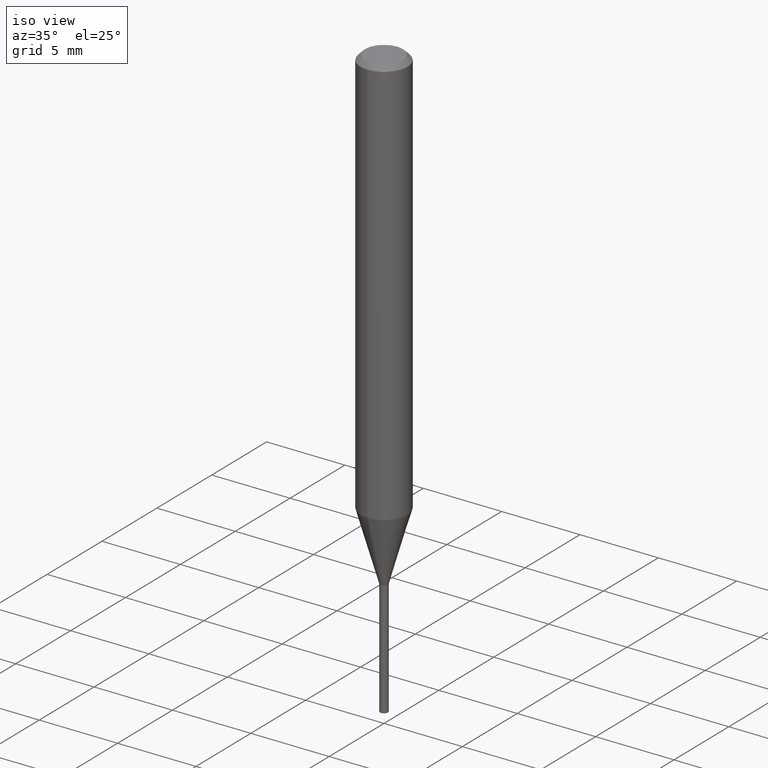
[diagram: clean part render]
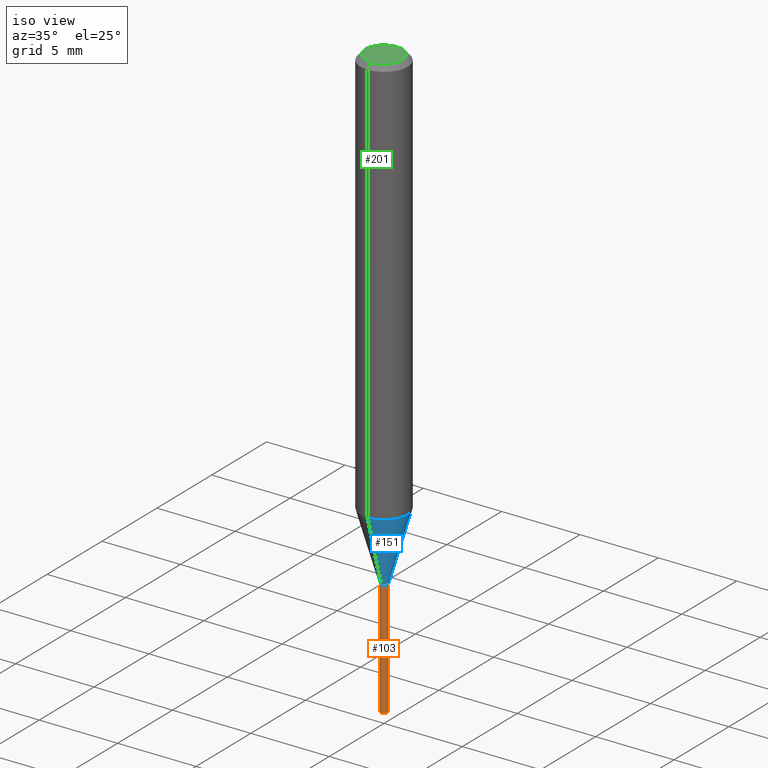
[diagram: same view with three faces highlighted in distinct colors, each labeled with its STEP entity id]
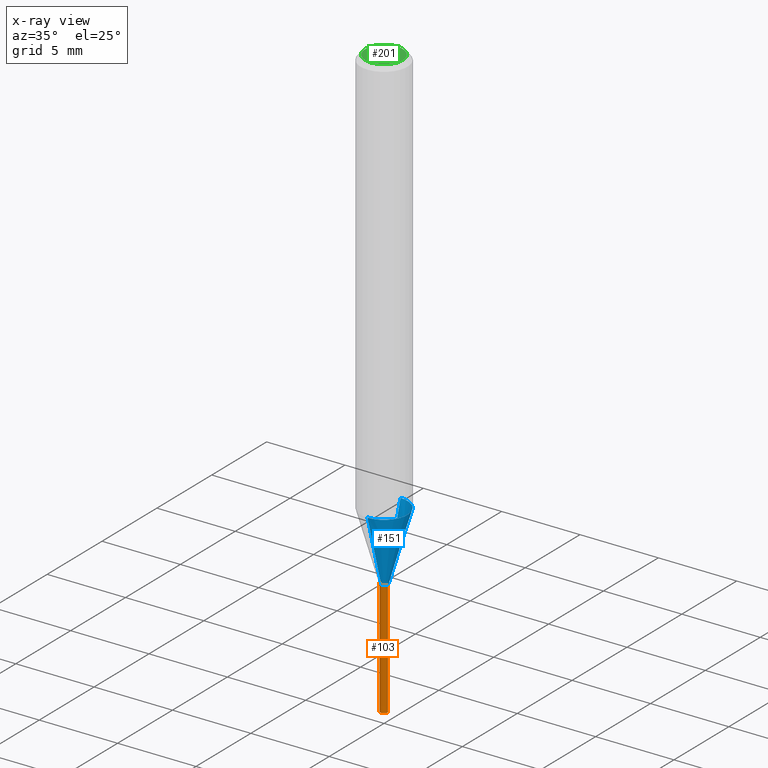
[diagram: x-ray of the same camera — body ghosted, the three highlighted faces saturated]
A machine part, iso view with three faces highlighted in distinct colors.
The next image is the same camera in x-ray (body ghosted, the three faces saturated) — at least one of them is partly hidden behind the body in this view.
Their STEP definitions:

[orange] entity #103 — the highlighted conical surface has half-angle 0.008 deg.
#103=ADVANCED_FACE('',(#242),#243,.T.);
#117=VERTEX_POINT('',#258);
#141=VERTEX_POINT('',#286);
#145=EDGE_CURVE('',#141,#153,#290,.T.);
#147=EDGE_CURVE('',#187,#117,#292,.T.);
#149=EDGE_CURVE('',#187,#153,#294,.T.);
#153=VERTEX_POINT('',#299);
#171=EDGE_CURVE('',#117,#141,#317,.T.);
#187=VERTEX_POINT('',#334);
#242=FACE_OUTER_BOUND('',#386,.T.);
#243=CONICAL_SURFACE('',#387,0.2505,0.00013543853327867);
#258=CARTESIAN_POINT('',(0.251,3.07376194809417E-017,-30.5));
#286=CARTESIAN_POINT('',(-0.251,0.0,-30.5));
#290=LINE('',#448,#449);
#292=LINE('',#452,#453);
#294=CIRCLE('',#456,0.25);
#299=CARTESIAN_POINT('',(-0.25,0.0,-37.88342309));
#317=CIRCLE('',#486,0.251);
#334=CARTESIAN_POINT('',(0.25,3.06151588455594E-017,-37.88342309));
#386=EDGE_LOOP('',(#569,#570,#571,#572));
#387=AXIS2_PLACEMENT_3D('',#573,#574,#575);
#448=CARTESIAN_POINT('',(-0.2505,-3.06763891632506E-017,-34.191711545));
#449=VECTOR('',#635,1.0);
#452=CARTESIAN_POINT('',(0.2505,3.06763891632506E-017,-34.191711545));
#453=VECTOR('',#636,1.0);
#456=AXIS2_PLACEMENT_3D('',#637,#638,#639);
#486=AXIS2_PLACEMENT_3D('',#660,#661,#662);
#569=ORIENTED_EDGE('',*,*,#145,.T.);
#570=ORIENTED_EDGE('',*,*,#149,.F.);
#571=ORIENTED_EDGE('',*,*,#147,.T.);
#572=ORIENTED_EDGE('',*,*,#171,.T.);
#573=CARTESIAN_POINT('',(0.0,0.0,-34.191711545));
#574=DIRECTION('',(-0.0,-0.0,1.0));
#575=DIRECTION('',(-1.0,0.0,0.0));
#635=DIRECTION('',(0.000135438532864599,1.65858887898369E-020,-0.999999990828202));
#636=DIRECTION('',(0.000135438532864599,1.65858887898369E-020,0.999999990828202));
#637=CARTESIAN_POINT('',(0.0,0.0,-37.88342309));
#638=DIRECTION('',(0.0,0.0,-1.0));
#639=DIRECTION('',(-1.0,0.0,0.0));
#660=CARTESIAN_POINT('',(0.0,0.0,-30.5));
#661=DIRECTION('',(0.0,0.0,-1.0));
#662=DIRECTION('',(-1.0,0.0,0.0));

[blue] entity #151 — the highlighted conical surface has half-angle 16.004 deg.
#101=VERTEX_POINT('',#240);
#111=EDGE_CURVE('',#101,#179,#252,.T.);
#115=EDGE_CURVE('',#127,#179,#256,.T.);
#125=EDGE_CURVE('',#127,#135,#268,.T.);
#127=VERTEX_POINT('',#270);
#135=VERTEX_POINT('',#278);
#151=ADVANCED_FACE('',(#296),#297,.T.);
#155=EDGE_CURVE('',#135,#101,#301,.T.);
#179=VERTEX_POINT('',#326);
#240=CARTESIAN_POINT('',(3.06151588455594E-017,-0.25,-30.4991339745962));
#252=LINE('',#399,#400);
#256=CIRCLE('',#407,1.5);
#268=LINE('',#419,#420);
#270=CARTESIAN_POINT('',(0.0,1.5,-26.141));
#278=CARTESIAN_POINT('',(0.0,0.25,-30.4991339745962));
#296=FACE_OUTER_BOUND('',#458,.T.);
#297=CONICAL_SURFACE('',#459,0.875,0.2793216271515);
#301=CIRCLE('',#464,0.25);
#326=CARTESIAN_POINT('',(1.83690953073357E-016,-1.5,-26.141));
#399=CARTESIAN_POINT('',(1.07153055959458E-016,-0.875,-28.3200669872981));
#400=VECTOR('',#590,1.0);
#407=AXIS2_PLACEMENT_3D('',#592,#593,#594);
#419=CARTESIAN_POINT('',(-1.07153055959458E-016,0.875,-28.3200669872981));
#420=VECTOR('',#609,1.0);
#458=EDGE_LOOP('',(#641,#642,#643,#644));
#459=AXIS2_PLACEMENT_3D('',#645,#646,#647);
#464=AXIS2_PLACEMENT_3D('',#648,#649,#650);
#590=DIRECTION('',(3.37628418430251E-017,-0.275703631110853,0.961242689330999));
#592=CARTESIAN_POINT('',(0.0,0.0,-26.141));
#593=DIRECTION('',(0.0,0.0,-1.0));
#594=DIRECTION('',(0.0,1.0,0.0));
#609=DIRECTION('',(3.37628418430251E-017,-0.275703631110853,-0.961242689330999));
#641=ORIENTED_EDGE('',*,*,#125,.F.);
#642=ORIENTED_EDGE('',*,*,#115,.T.);
#643=ORIENTED_EDGE('',*,*,#111,.F.);
#644=ORIENTED_EDGE('',*,*,#155,.F.);
#645=CARTESIAN_POINT('',(0.0,0.0,-28.3200669872981));
#646=DIRECTION('',(-0.0,-0.0,1.0));
#647=DIRECTION('',(0.0,1.0,0.0));
#648=CARTESIAN_POINT('',(0.0,0.0,-30.4991339745962));
#649=DIRECTION('',(0.0,0.0,-1.0));
#650=DIRECTION('',(0.0,1.0,0.0));

[green] entity #201 — the highlighted planar face has unit normal (-0, 0, 1).
#133=EDGE_CURVE('',#193,#195,#276,.T.);
#181=EDGE_CURVE('',#195,#193,#328,.T.);
#193=VERTEX_POINT('',#341);
#195=VERTEX_POINT('',#343);
#201=ADVANCED_FACE('',(#350),#351,.T.);
#276=CIRCLE('',#432,1.2);
#328=CIRCLE('',#500,1.2);
#341=CARTESIAN_POINT('',(0.0,1.2,0.0));
#343=CARTESIAN_POINT('',(1.46952762458685E-016,-1.2,0.0));
#350=FACE_OUTER_BOUND('',#525,.T.);
#351=PLANE('',#526);
#432=AXIS2_PLACEMENT_3D('',#614,#615,#616);
#500=AXIS2_PLACEMENT_3D('',#672,#673,#674);
#525=EDGE_LOOP('',(#694,#695));
#526=AXIS2_PLACEMENT_3D('',#696,#697,#698);
#614=CARTESIAN_POINT('',(0.0,0.0,0.0));
#615=DIRECTION('',(0.0,0.0,-1.0));
#616=DIRECTION('',(0.0,1.0,0.0));
#672=CARTESIAN_POINT('',(0.0,0.0,0.0));
#673=DIRECTION('',(0.0,0.0,-1.0));
#674=DIRECTION('',(0.0,1.0,0.0));
#694=ORIENTED_EDGE('',*,*,#133,.F.);
#695=ORIENTED_EDGE('',*,*,#181,.F.);
#696=CARTESIAN_POINT('',(0.0,0.6,0.0));
#697=DIRECTION('',(-0.0,0.0,1.0));
#698=DIRECTION('',(0.0,-1.0,0.0));